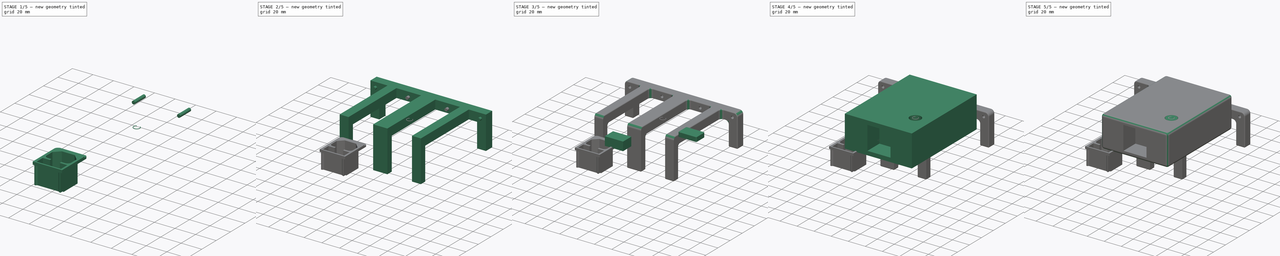
[diagram: build sequence overview — one tinted view per stage of 5, left to right]
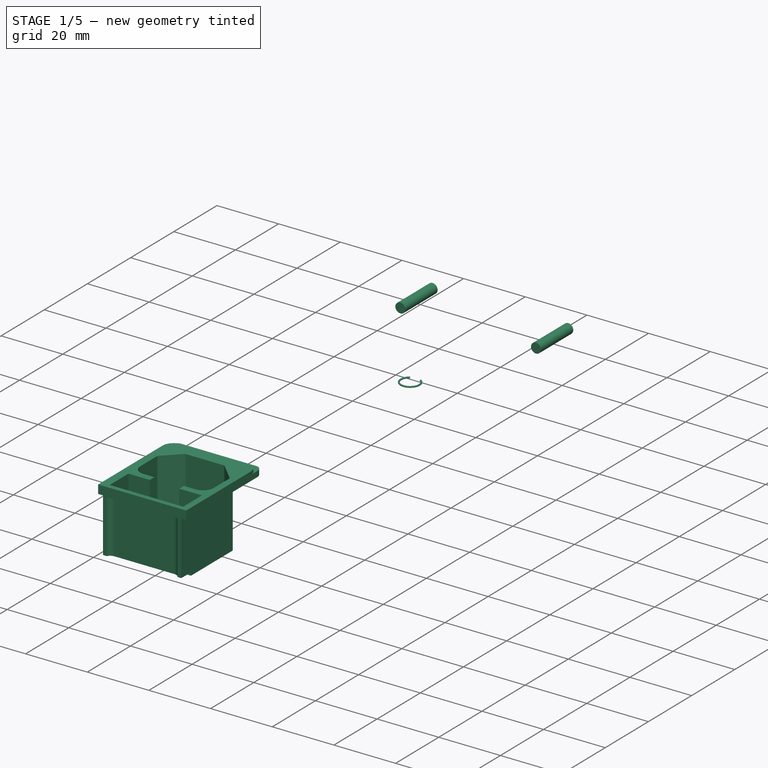
[diagram: stage 1 of 5 — iso view after this stage's code; geometry added in this stage tinted green]
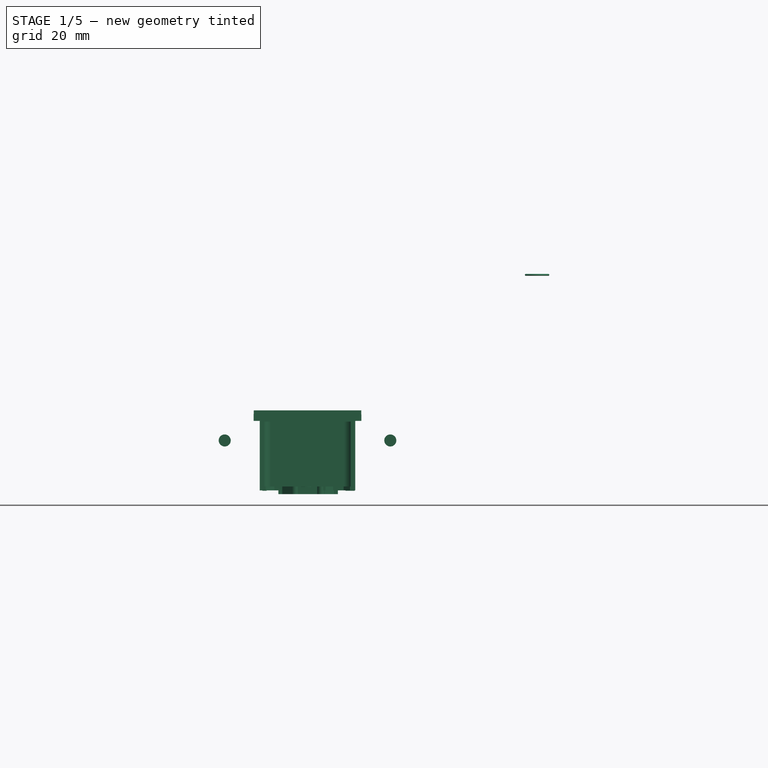
[diagram: stage 1 of 5 — front view after this stage's code; geometry added in this stage tinted green]
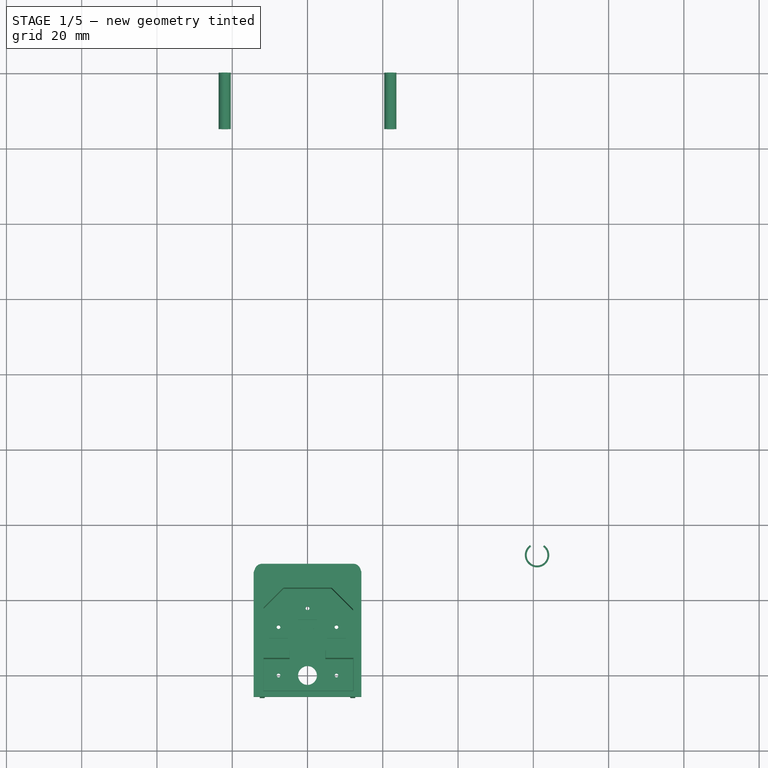
[diagram: stage 1 of 5 — top view after this stage's code; geometry added in this stage tinted green]
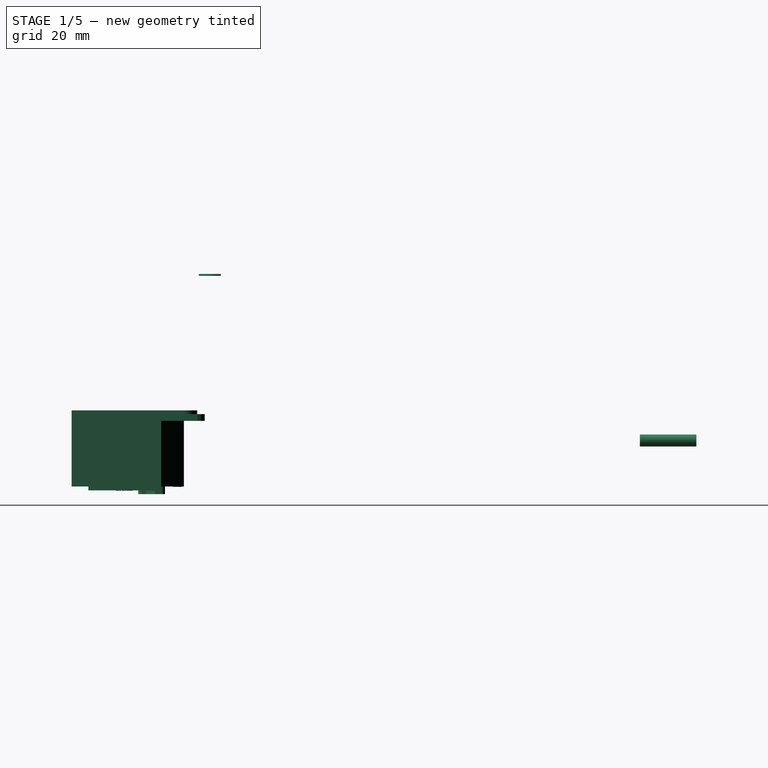
[diagram: stage 1 of 5 — right view after this stage's code; geometry added in this stage tinted green]
FCSTD DOCUMENT  (FreeCAD 0.21R33771 (Git))
Label: ezOutlet_holders
License: All rights reserved
LicenseURL: https://en.wikipedia.org/wiki/All_rights_reserved
objects: Part::Feature×38, Part::Box×16, Part::Cut×11, App::Part×9, Part::Cylinder×7, Part::Fillet×6, Part::MultiFuse×4, Sketcher::SketchObject×2, Part::Extrusion×2, Part::Torus×1
note: 87 computed .brp shape members not serialized (recipe doc carries the construction recipe); baked Part::Feature solids carry a one-line shape summary decoded from their .brp

FEATURE [Part::Box] Box003  label="Cube003"
  AttacherType = Attacher::AttachEngine3D
  Height = 57
  Length = 14.7
  Placement = pos=(-29,-7,-28) rot=(0,0,1;0rad)
  Width = 38
FEATURE [Part::Box] Box004  label="Cube004"
  AttacherType = Attacher::AttachEngine3D
  Height = 57
  Length = 14.7
  Placement = pos=(14.3,-7,-31) rot=(0,0,1;0rad)
  Width = 38
FEATURE [Part::Box] Box015  label="Cube002"
  AttacherType = Attacher::AttachEngine3D
  Height = 57
  Length = 62
  Placement = pos=(-29,-44,-31) rot=(0,0,1;0rad)
  Width = 38
FEATURE [Part::Cylinder] Cylinder021  label="m3_lm"
  Angle = 360
  AttacherType = Attacher::AttachEngine3D
  FirstAngle = 0
  Height = 15
  Placement = pos=(-22,160,-7) rot=(1,0,0;1.5708rad)
  Radius = 1.6
  SecondAngle = 0
FEATURE [Part::Cylinder] Cylinder022  label="m3_rm"
  Angle = 360
  AttacherType = Attacher::AttachEngine3D
  FirstAngle = 0
  Height = 15
  Placement = pos=(22,160,-7) rot=(1,0,0;1.5708rad)
  Radius = 1.6
  SecondAngle = 0
FEATURE [Part::Feature] Part__Feature  label="Body"
  shape: bbox 30 x 26.75 x 29.35 mm, 109 faces (baked)
FEATURE [Part::Feature] Part__Feature001  label="Body001"
  Placement = pos=(9e-16,-2.285,-17.7) rot=(0,0,1;0rad)
  shape: bbox 9 x 0.5 x 14.6 mm, 20 faces (baked)
FEATURE [Part::Feature] Part__Feature002  label="Body002"
  Placement = pos=(4.25,5.59,0) rot=(0,0,1;1.5708rad)
  shape: bbox 0.5 x 9 x 14.6 mm, 20 faces (baked)
FEATURE [Part::Feature] Part__Feature003  label="Body003"
  Placement = pos=(-4.25,5.59,0) rot=(0,0,1;1.5708rad)
  shape: bbox 0.5 x 9 x 14.6 mm, 20 faces (baked)
FEATURE [Part::Feature] Part__Feature004  label="Solid1"
  shape: bbox 48.94 x 58.74 x 22.24 mm, 535 faces (baked)
FEATURE [Part::Cut] Cut003
  Base = -> Part__Feature004
  Tool = -> Box015
FEATURE [Part::Cut] Cut004
  Base = -> Cut003
  Tool = -> Box003
FEATURE [Part::Cut] Cut005
  Base = -> Cut004
  Tool = -> Box004
FEATURE [App::Part] Part006  label="ezOutlet_holder"
  Group = -> [Box026,Fillet012,Fusion011,Cylinder020,Cylinder019,Cylinder021,Cylinder022,Extrude002,Box028,Fusion012,Box024,Box027,Box025,Sketch002,Cut017]
  Origin = -> Origin030
  Placement = pos=(0,0,-157) rot=(0,0,1;0rad)
FEATURE [App::Part] Solid3  label="Solid006"
  Group = -> [Part__Feature005,Part__Feature006,Part__Feature007]
  Origin = -> Origin002
FEATURE [App::Part] Solid4  label="Solid010"
  Group = -> [Part__Feature008,Part__Feature009,Part__Feature010,Part__Feature011]
  Origin = -> Origin023
FEATURE [Part::Torus] Torus
  Angle1 = -180
  Angle2 = 180
  Angle3 = 290
  AttacherType = Attacher::AttachEngine3D
  Placement = pos=(61,31,37) rot=(0,0,1;2.18166rad)
  Radius1 = 3
  Radius2 = 0.25
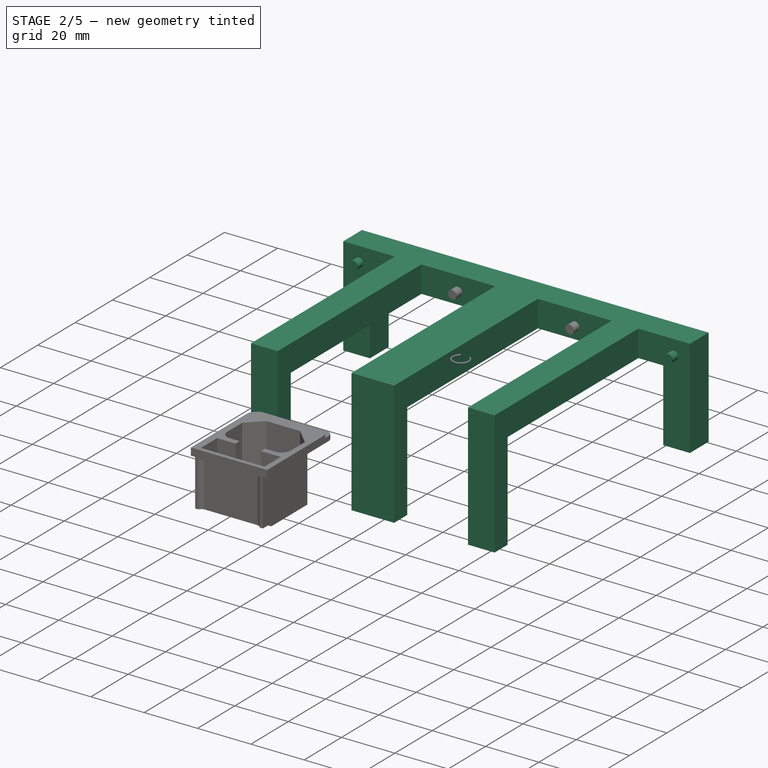
[diagram: stage 2 of 5 — iso view after this stage's code; geometry added in this stage tinted green]
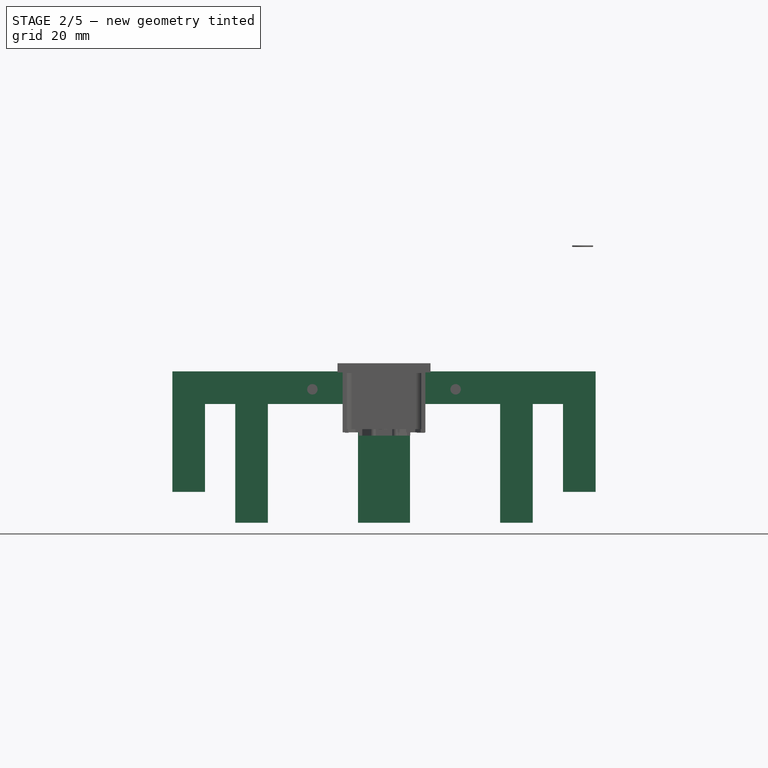
[diagram: stage 2 of 5 — front view after this stage's code; geometry added in this stage tinted green]
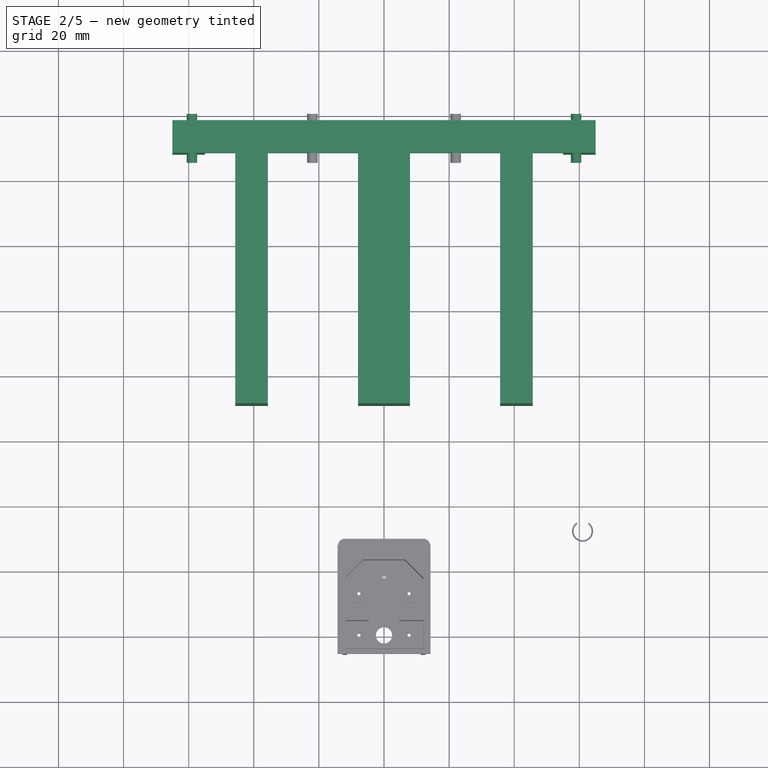
[diagram: stage 2 of 5 — top view after this stage's code; geometry added in this stage tinted green]
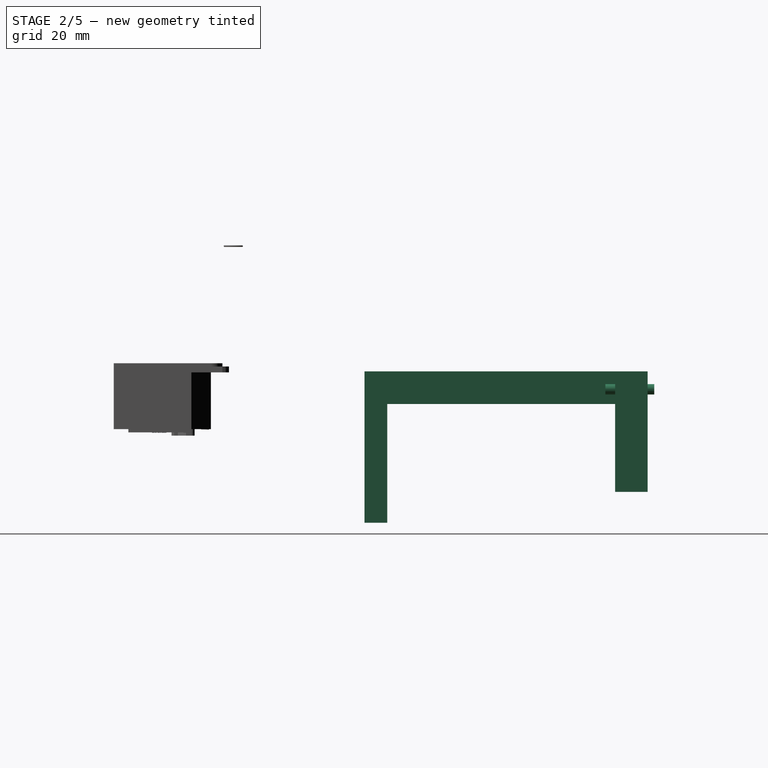
[diagram: stage 2 of 5 — right view after this stage's code; geometry added in this stage tinted green]
FEATURE [Part::Box] Box024  label="Bottom_left"
  AttacherType = Attacher::AttachEngine3D
  Height = 27
  Length = 10
  Placement = pos=(-65,148,-38.5) rot=(0,0,1;0rad)
  Width = 10
FEATURE [Part::Box] Box025  label="Bottom_right"
  AttacherType = Attacher::AttachEngine3D
  Height = 27
  Length = 10
  Placement = pos=(55,148,-38.5) rot=(0,0,1;0rad)
  Width = 10
FEATURE [Part::Box] Box026  label="Top_left"
  AttacherType = Attacher::AttachEngine3D
  Height = 36.5
  Length = 10
  Placement = pos=(-45.68,71,-48) rot=(0,0,1;0rad)
  Width = 7
FEATURE [Part::Box] Box027  label="Top_right"
  AttacherType = Attacher::AttachEngine3D
  Height = 36.5
  Length = 10
  Placement = pos=(35.68,71,-48) rot=(0,0,1;0rad)
  Width = 7
FEATURE [Part::Box] Box028  label="Top_middle"
  AttacherType = Attacher::AttachEngine3D
  Height = 36.5
  Length = 16
  Placement = pos=(-8,71,-48) rot=(0,0,1;0rad)
  Width = 7
FEATURE [Part::Cylinder] Cylinder019  label="m3_l"
  Angle = 360
  AttacherType = Attacher::AttachEngine3D
  FirstAngle = 0
  Height = 15
  Placement = pos=(-59,160,-7) rot=(1,0,0;1.5708rad)
  Radius = 1.6
  SecondAngle = 0
FEATURE [Part::Cylinder] Cylinder020  label="m3_r"
  Angle = 360
  AttacherType = Attacher::AttachEngine3D
  FirstAngle = 0
  Height = 15
  Placement = pos=(59,160,-7) rot=(1,0,0;1.5708rad)
  Radius = 1.6
  SecondAngle = 0
FEATURE [Part::MultiFuse] Fusion012  label="m3"
  Shapes = -> [Cylinder019,Cylinder020,Cylinder021,Cylinder022]
FEATURE [Sketcher::SketchObject] Sketch002
  FullyConstrained = true
  sketch-geometry (16):
    g0: LineSegment StartX=-65 StartY=157.37 StartZ=0 EndX=65 EndY=157.37 EndZ=0
    g1: LineSegment StartX=-65 StartY=157.37 StartZ=0 EndX=-65 EndY=147.37 EndZ=0
    g2: LineSegment StartX=-65 StartY=147.37 StartZ=0 EndX=-45.68 EndY=147.37 EndZ=0
    g3: LineSegment StartX=-45.68 StartY=147.37 StartZ=0 EndX=-45.68 EndY=70.37 EndZ=0
    g4: LineSegment StartX=-45.68 StartY=70.37 StartZ=0 EndX=-35.68 EndY=70.37 EndZ=0
    g5: LineSegment StartX=-35.68 StartY=70.37 StartZ=0 EndX=-35.68 EndY=147.37 EndZ=0
    g6: LineSegment StartX=-35.68 StartY=147.37 StartZ=0 EndX=-8 EndY=147.37 EndZ=0
    g7: LineSegment StartX=-8 StartY=147.37 StartZ=0 EndX=-8 EndY=70.37 EndZ=0
    g8: LineSegment StartX=-8 StartY=70.37 StartZ=0 EndX=8 EndY=70.37 EndZ=0
    g9: LineSegment StartX=8 StartY=70.37 StartZ=0 EndX=8 EndY=147.37 EndZ=0
    g10: LineSegment StartX=8 StartY=147.37 StartZ=0 EndX=35.68 EndY=147.37 EndZ=0
    g11: LineSegment StartX=35.68 StartY=147.37 StartZ=0 EndX=35.68 EndY=70.37 EndZ=0
    g12: LineSegment StartX=35.68 StartY=70.37 StartZ=0 EndX=45.68 EndY=70.37 EndZ=0
    g13: LineSegment StartX=45.68 StartY=70.37 StartZ=0 EndX=45.68 EndY=147.37 EndZ=0
    g14: LineSegment StartX=45.68 StartY=147.37 StartZ=0 EndX=65 EndY=147.37 EndZ=0
    g15: LineSegment StartX=65 StartY=147.37 StartZ=0 EndX=65 EndY=157.37 EndZ=0
  constraints (44):
    c: Symmetric(g0,g0,g-2)
    c: Distance(g0) = 130
    c: Coincident(g1,g0)
    c: Vertical(g1)
    c: Coincident(g2,g1)
    c: Horizontal(g2)
    c: Vertical(g3)
    c: Coincident(g4,g3)
    c: Horizontal(g4)
    c: Coincident(g5,g4)
    c: Vertical(g5)
    c: Coincident(g6,g5)
    c: Horizontal(g6)
    c: Coincident(g7,g6)
    c: Vertical(g7)
    c: Coincident(g8,g7)
    c: Horizontal(g8)
    c: Coincident(g9,g8)
    c: Vertical(g9)
    c: Coincident(g10,g9)
    c: Coincident(g11,g10)
    c: Vertical(g11)
    c: Coincident(g12,g11)
    c: Horizontal(g12)
    c: Coincident(g13,g12)
    c: Vertical(g13)
    c: Coincident(g14,g13)
    c: Horizontal(g14)
    c: Coincident(g15,g14)
    c: Coincident(g15,g0)
    c: Vertical(g15)
    c: Symmetric(g6,g9,g-2)
    c: Symmetric(g5,g10,g-2)
    c: Symmetric(g2,g13,g-2)
    c: Coincident(g2,g3)
    c: Distance(g2,g0) = 10
    c: Distance(g5,g0) = 10
    c: Distance(g3) = 77
    c: Distance(g4) = 10
    c: Distance(g8) = 16
    c: Distance(g9) = 77
    c: Distance(g13) = 77
    c: Distance(g1,g-1) = 147.37
    c: Distance(g3,g-2) = 45.68
FEATURE [Part::Extrusion] Extrude002  label="Side__hold"
  Base = -> Sketch002
  Dir = (0,0,1)
  DirMode = 2
  FaceMakerClass = Part::FaceMakerBullseye
  LengthFwd = 10
  LengthRev = 0
  Placement = pos=(0,0.63,-1.5) rot=(0,0,1;0rad)
  Reversed = true
  Solid = true
  Symmetric = false
FEATURE [Part::MultiFuse] Fusion011  label="Holder"
  Shapes = -> [Extrude002,Box024,Box025,Box026,Box027,Box028]
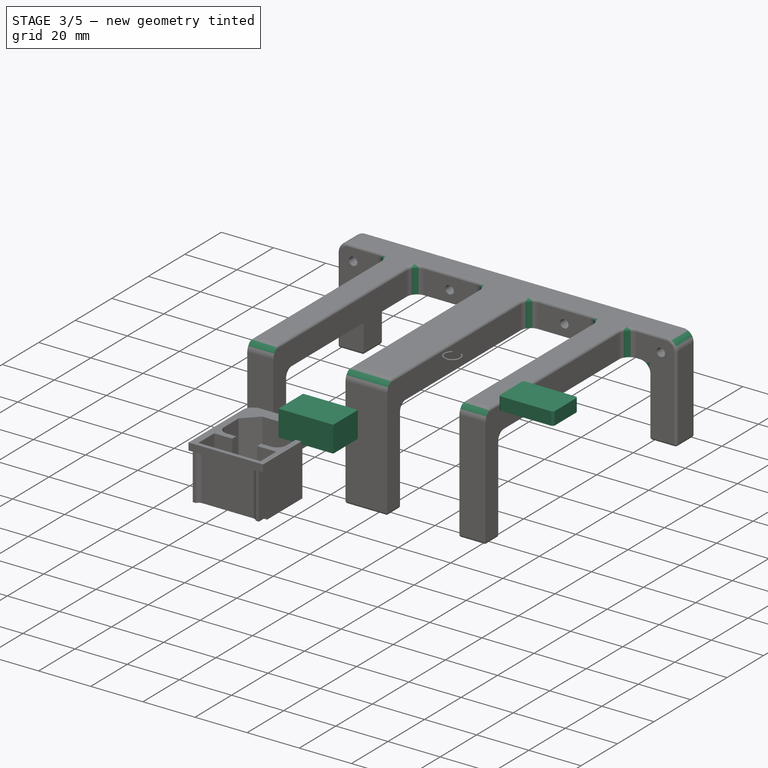
[diagram: stage 3 of 5 — iso view after this stage's code; geometry added in this stage tinted green]
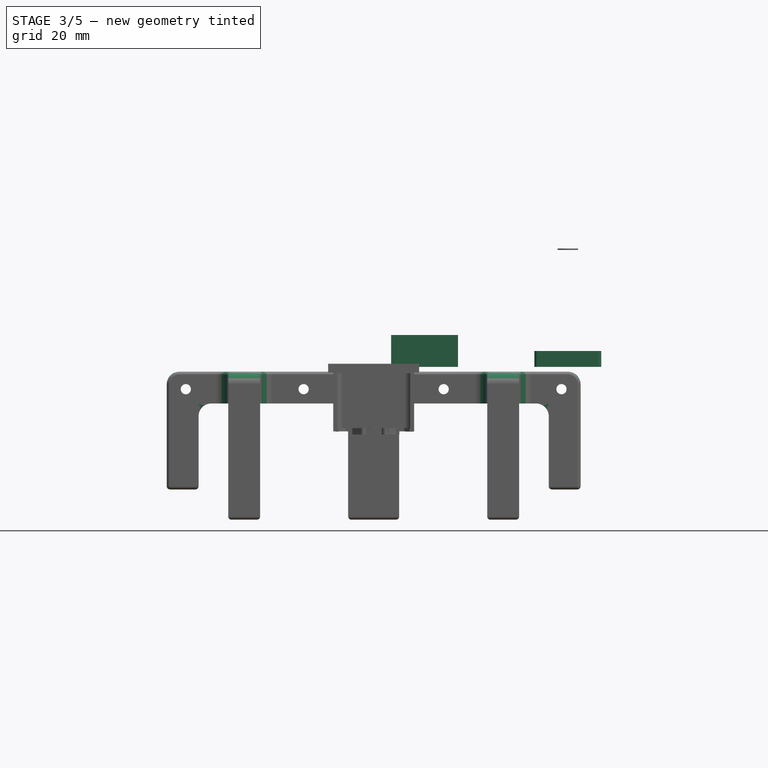
[diagram: stage 3 of 5 — front view after this stage's code; geometry added in this stage tinted green]
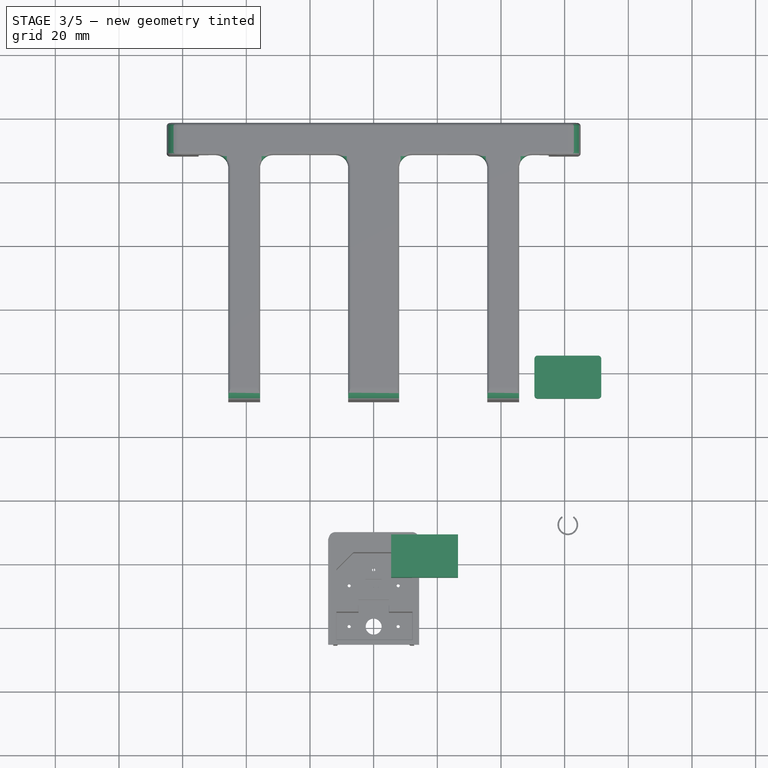
[diagram: stage 3 of 5 — top view after this stage's code; geometry added in this stage tinted green]
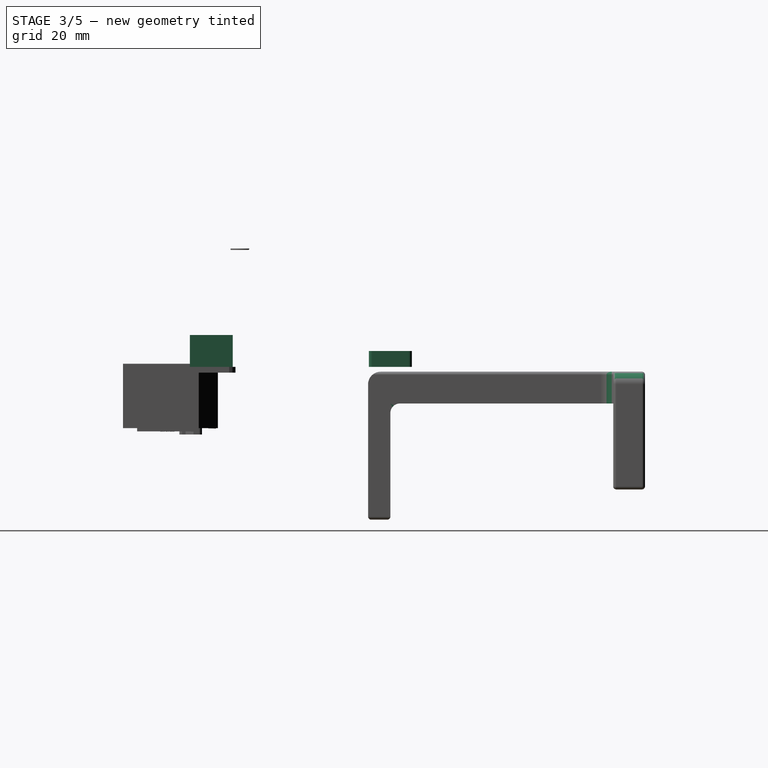
[diagram: stage 3 of 5 — right view after this stage's code; geometry added in this stage tinted green]
FEATURE [Part::Box] Box007  label="Cube010"
  AttacherType = Attacher::AttachEngine3D
  Height = 10
  Length = 21
  Placement = pos=(5.5,15,0) rot=(0,0,1;0rad)
  Width = 13.5
FEATURE [Part::Box] Box016  label="Cube011"
  AttacherType = Attacher::AttachEngine3D
  Height = 10
  Length = 20.8
  Placement = pos=(5.6,15.1,0) rot=(0,0,1;0rad)
  Width = 13.3
FEATURE [Part::Box] Box017  label="Cube012"
  AttacherType = Attacher::AttachEngine3D
  Height = 5
  Length = 21
  Placement = pos=(5.5,13.5,0) rot=(0,0,1;0rad)
  Width = 13.5
FEATURE [Part::Box] Box018  label="Cube013"
  AttacherType = Attacher::AttachEngine3D
  Height = 5
  Length = 20.8
  Placement = pos=(5.5,13.5,0) rot=(0,0,1;0rad)
  Width = 13.3
FEATURE [Part::Fillet] Fillet005  label="Key_hole_mount"
  Base = -> Box016
  Edges = 4 edges r=1: [Edge1,Edge3,Edge5,Edge7]
FEATURE [Part::Fillet] Fillet006  label="Key_hole001"
  Base = -> Box017
  Edges = 4 edges r=1: [Edge1,Edge3,Edge5,Edge7]
  Placement = pos=(45,57.75,0) rot=(0,0,1;0rad)
FEATURE [Part::Fillet] Fillet007  label="Key_hole002"
  Base = -> Box018
  Edges = 4 edges r=1: [Edge1,Edge3,Edge5,Edge7]
  Placement = pos=(45.1,57.85,0) rot=(0,0,1;0rad)
FEATURE [Part::Fillet] Fillet012  label="Holder_fillet"
  Base = -> Fusion011
  Edges = 55 edges: [Edge1 r=1,Edge2 r=1,Edge3 r=1,Edge7 r=1,Edge8 r=4,Edge10 r=1,Edge11 r=4,Edge13 r=1,Edge14 r=1,Edge15 r=4,Edge16 r=1,Edge17 r=1,Edge18 r=1,Edge19 r=4,Edge20 r=1,Edge21 r=1,Edge22 r=1,Edge23 r=4,Edge24 r=1,Edge25 r=1,Edge26 r=1,Edge28 r=1,Edge29 r=4,Edge32 r=3,Edge36 r=3,Edge40 r=3,Edge43 r=4,Edge44 r=1,Edge45 r=1,Edge47 r=4,Edge49 r=1,Edge50 r=1,Edge51 r=4,Edge53 r=1,Edge54 r=1,Edge59 r=4,Edge61 r=4,Edge66 r=4,Edge68 r=4,Edge74 r=1,Edge75 r=1,Edge78 r=1,Edge79 r=1,Edge82 r=1,Edge85 r=1,Edge88 r=1,Edge90 r=1,Edge91 r=1,Edge93 r=1,Edge95 r=1,Edge96 r=1,Edge98 r=1,Edge100 r=1,Edge101 r=1,+1 more]
FEATURE [Part::Cut] Cut017  label="eZ_Holder"
  Base = -> Fillet012
  Tool = -> Fusion012
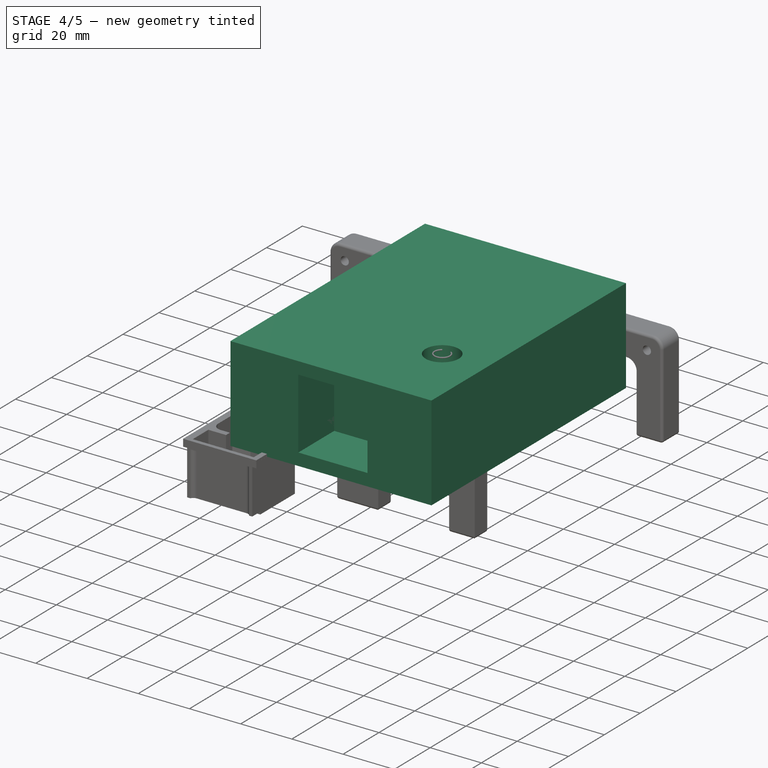
[diagram: stage 4 of 5 — iso view after this stage's code; geometry added in this stage tinted green]
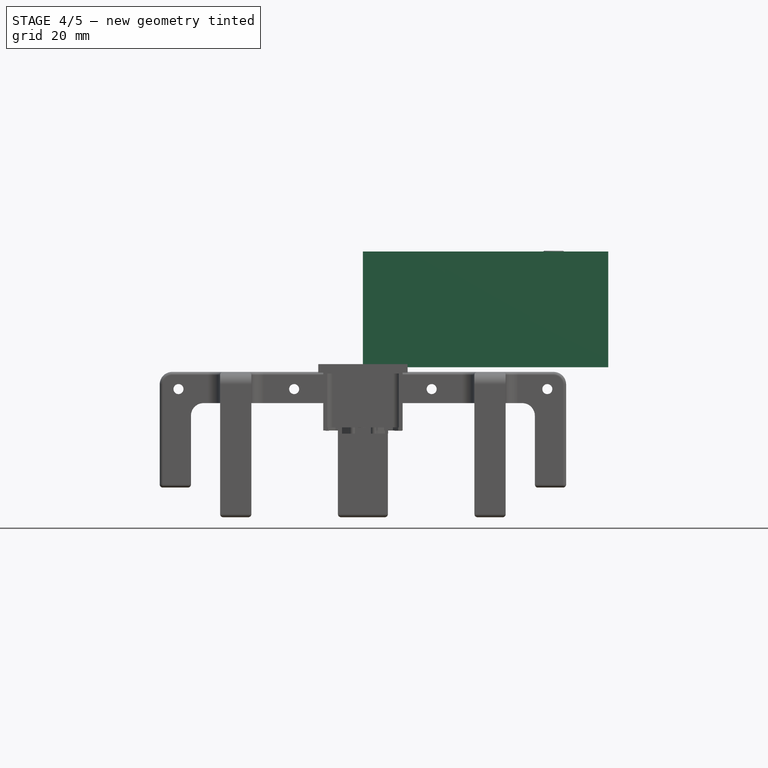
[diagram: stage 4 of 5 — front view after this stage's code; geometry added in this stage tinted green]
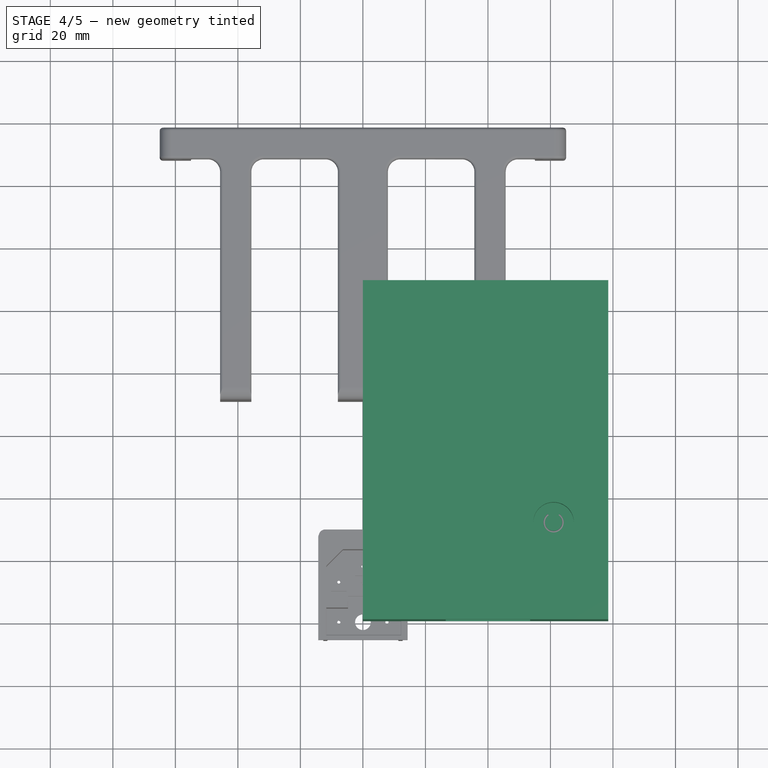
[diagram: stage 4 of 5 — top view after this stage's code; geometry added in this stage tinted green]
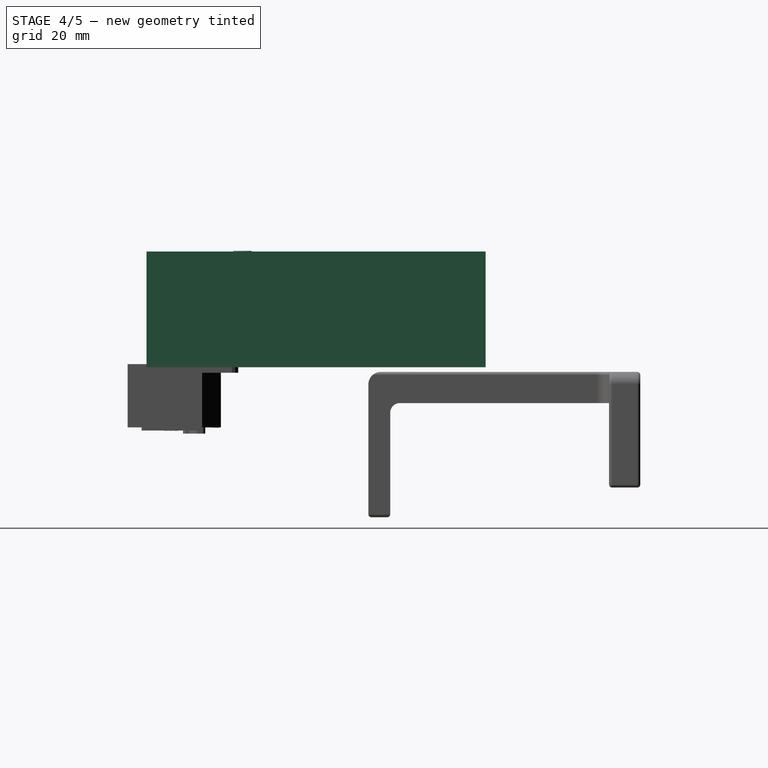
[diagram: stage 4 of 5 — right view after this stage's code; geometry added in this stage tinted green]
FEATURE [Part::Box] Box005  label="Cube009"
  AttacherType = Attacher::AttachEngine3D
  Height = 25
  Length = 31
  Placement = pos=(37.5,83.5,6) rot=(0,0,1;0rad)
  Width = 27
FEATURE [Part::Box] Box006  label="lan_cube"
  AttacherType = Attacher::AttachEngine3D
  Height = 13.25
  Length = 16.5
  Placement = pos=(11.25,101,14.8) rot=(0,0,1;0rad)
  Width = 10
FEATURE [Part::Box] Box013  label="Cube"
  AttacherType = Attacher::AttachEngine3D
  Height = 37
  Length = 78.5
  Width = 108.5
FEATURE [Part::Box] Box014  label="Cube001"
  AttacherType = Attacher::AttachEngine3D
  Height = 27.5
  Length = 27
  Placement = pos=(26.5,0,4.75) rot=(0,0,1;0rad)
  Width = 20
FEATURE [Part::Cut] Cut001  label="Power_out_cut"
  Base = -> Box013
  Tool = -> Box014
FEATURE [Part::Cylinder] Cylinder004
  Angle = 360
  AttacherType = Attacher::AttachEngine3D
  FirstAngle = 0
  Height = 10
  Placement = pos=(61,31,27) rot=(0,0,1;0rad)
  Radius = 6.5
  SecondAngle = 0
FEATURE [Part::Cut] Cut002  label="Power_button_cut"
  Base = -> Cut001
  Tool = -> Cylinder004
FEATURE [Part::Cut] Cut006  label="Power_in_cut"
  Base = -> Cut002
  Tool = -> Box005
FEATURE [Part::Cut] Cut007  label="LAN_cut"
  Base = -> Cut006
  Tool = -> Box006
FEATURE [Part::Fillet] Fillet004  label="Key_hole"
  Base = -> Box007
  Edges = 4 edges r=1: [Edge1,Edge3,Edge5,Edge7]
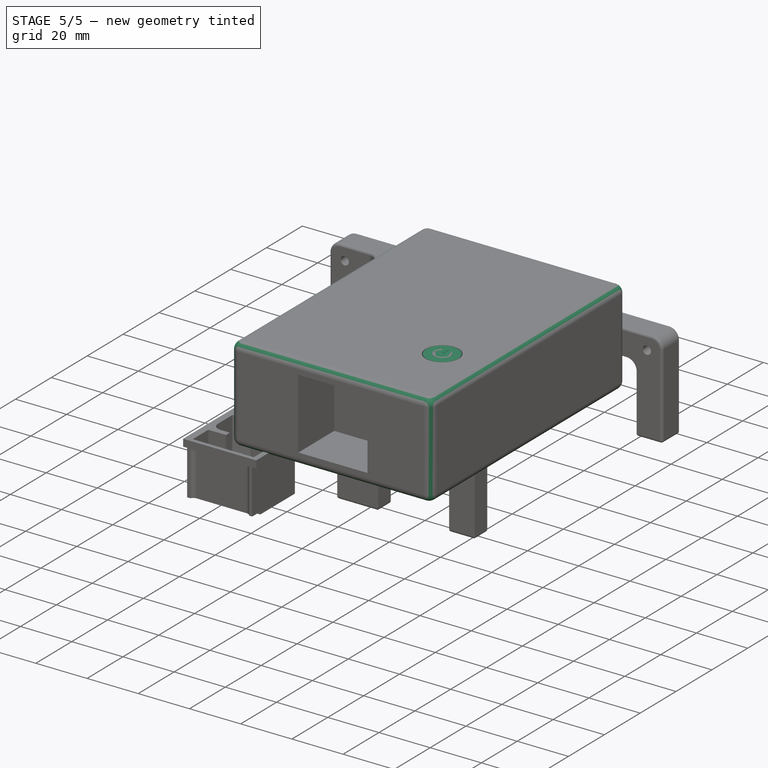
[diagram: stage 5 of 5 — iso view after this stage's code; geometry added in this stage tinted green]
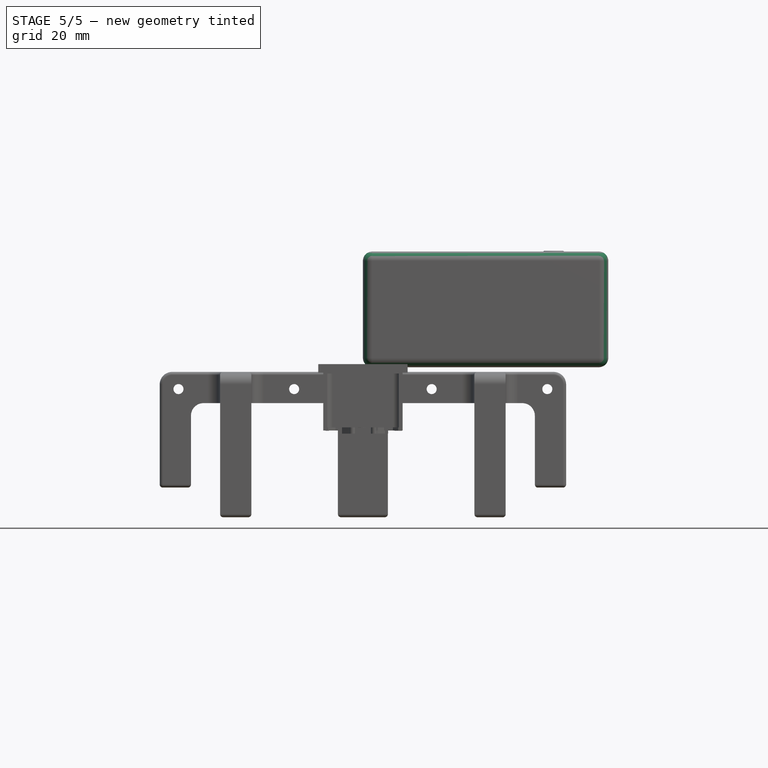
[diagram: stage 5 of 5 — front view after this stage's code; geometry added in this stage tinted green]
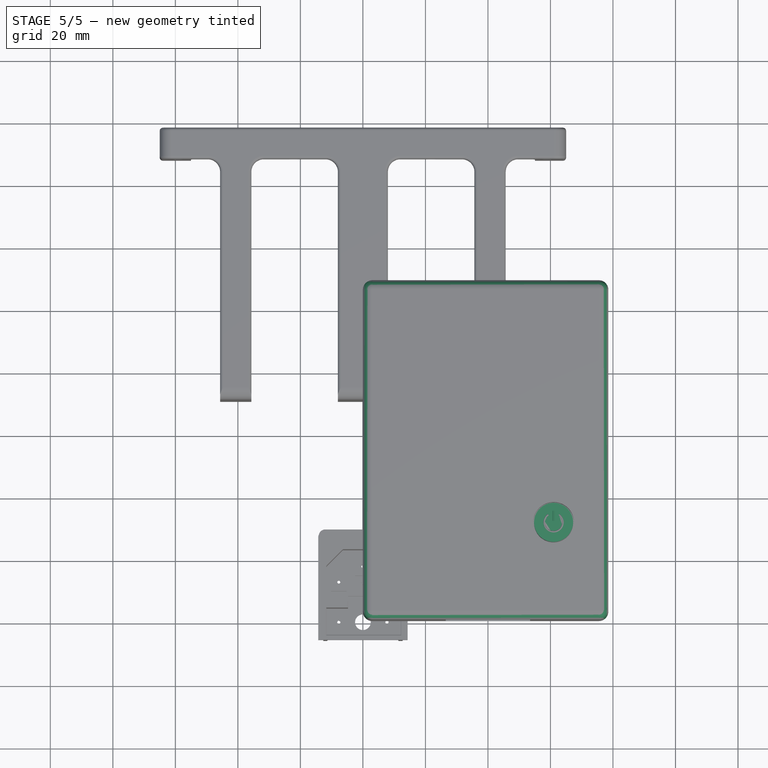
[diagram: stage 5 of 5 — top view after this stage's code; geometry added in this stage tinted green]
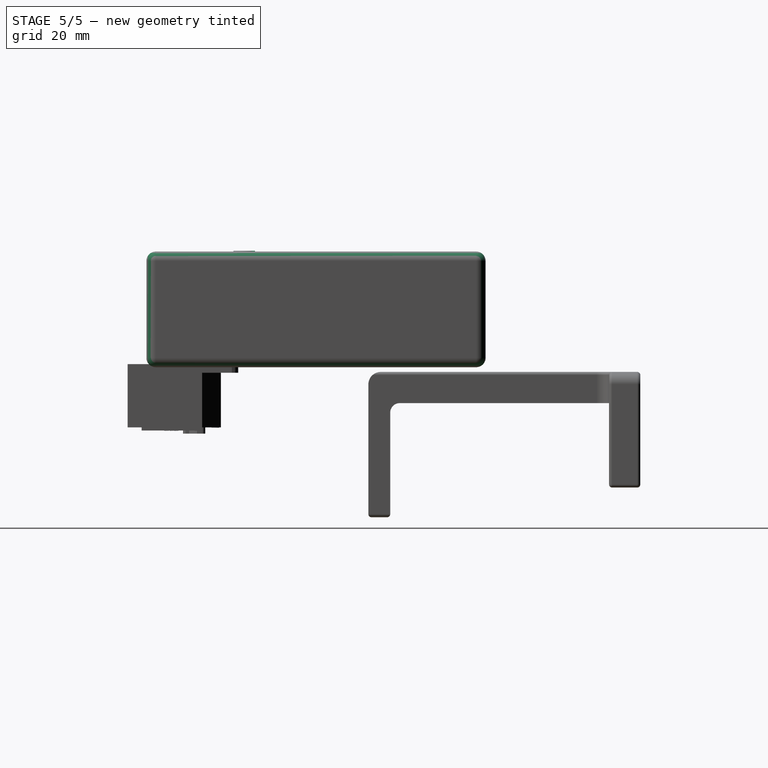
[diagram: stage 5 of 5 — right view after this stage's code; geometry added in this stage tinted green]
FEATURE [Part::Cylinder] Cylinder005  label="power_butt"
  Angle = 360
  AttacherType = Attacher::AttachEngine3D
  FirstAngle = 0
  Height = 10
  Placement = pos=(61,31,27) rot=(0,0,1;0rad)
  Radius = 6.25
  SecondAngle = 0
FEATURE [Part::Cylinder] Cylinder006
  Angle = 360
  AttacherType = Attacher::AttachEngine3D
  FirstAngle = 0
  Height = 3.25
  Placement = pos=(61,31.5,37) rot=(-1,0,0;1.5708rad)
  Radius = 0.25
  SecondAngle = 0
FEATURE [Part::Fillet] Fillet003  label="main_box"
  Base = -> Cut007
  Edges = 12 edges r=3: [Edge1,Edge2,Edge3,Edge4,Edge5,Edge6,Edge7,Edge12,Edge13,Edge15,Edge16,Edge25]
FEATURE [Part::Cut] Cut008  label="first_hole"
  Base = -> Fillet003
  Tool = -> Fillet004
FEATURE [Part::Cut] Cut009  label="Hole2"
  Base = -> Cut008
  Tool = -> Fillet006
FEATURE [Part::MultiFuse] Fusion007
  Shapes = -> [Fillet005,Cut009,Fillet007]
FEATURE [Part::Feature] Part__Feature005  label="Solid3"
  shape: bbox 2 x 4 x 20.28 mm, 13 faces (baked)
FEATURE [Part::Feature] Part__Feature006  label="Solid004"
  shape: bbox 2 x 4 x 17.28 mm, 13 faces (baked)
FEATURE [Part::Feature] Part__Feature007  label="Solid005"
  shape: bbox 2 x 4 x 17.28 mm, 13 faces (baked)
FEATURE [Part::Feature] Part__Feature008  label="Solid4"
  shape: bbox 5.5 x 5.5 x 8.5 mm, 23 faces (baked)
FEATURE [Part::Feature] Part__Feature009  label="Solid007"
  shape: bbox 5.5 x 5.5 x 8.5 mm, 23 faces (baked)
FEATURE [Part::Feature] Part__Feature010  label="Solid008"
  shape: bbox 5.5 x 5.5 x 8.5 mm, 23 faces (baked)
FEATURE [Part::Feature] Part__Feature011  label="Solid009"
  shape: bbox 5.769 x 18 x 0.5 mm, 12 faces (baked)
FEATURE [Part::Feature] Part__Feature012  label="FUSE"
  Placement = pos=(2.76516,20.0677,-12.471) rot=(1,0,0;1.5708rad)
  shape: bbox 5 x 7 x 11.27 mm, 51 faces (baked)
FEATURE [Part::Feature] Part__Feature013  label="FUSE001"
  Placement = pos=(2.76516,20.0677,-12.471) rot=(1,0,0;1.5708rad)
  shape: bbox 2 x 2 x 2.691 mm, 4 faces (baked)
FEATURE [Part::Feature] Part__Feature014  label="FUSE002"
  Placement = pos=(2.76516,20.0677,-12.471) rot=(1,0,0;1.5708rad)
  shape: bbox 5 x 7 x 13.96 mm, 54 faces (baked)
FEATURE [App::Part] FUSE  label="FUSE003"
  Group = -> [Part__Feature012,Part__Feature013,Part__Feature014]
  Origin = -> Origin024
FEATURE [Part::Feature] Part__Feature015  label="COMPOUND011"
  Placement = pos=(0,-0.0056,0.0002) rot=(0,0,1;0rad)
  shape: bbox 0.4 x 11.61 x 3.651 mm, 6 faces (baked)
FEATURE [Part::Feature] Part__Feature247  label="COMPOUND012"
  Placement = pos=(0,-0.0056,0.0002) rot=(0,0,1;0rad)
  shape: bbox 0.4 x 11.61 x 3.651 mm, 6 faces (baked)
FEATURE [Part::Feature] Part__Feature248  label="COMPOUND013"
  Placement = pos=(0,-0.0056,0.0002) rot=(0,0,1;0rad)
  shape: bbox 0.4 x 11.61 x 3.651 mm, 6 faces (baked)
FEATURE [Part::Feature] Part__Feature249  label="COMPOUND014"
  Placement = pos=(0,-0.0056,0.0002) rot=(0,0,1;0rad)
  shape: bbox 0.4 x 11.61 x 3.651 mm, 6 faces (baked)
FEATURE [Part::Feature] Part__Feature250  label="COMPOUND015"
  Placement = pos=(0,-0.0056,0.0002) rot=(0,0,1;0rad)
  shape: bbox 0.4 x 11.61 x 3.651 mm, 6 faces (baked)
FEATURE [Part::Feature] Part__Feature251  label="COMPOUND016"
  Placement = pos=(0,-0.0056,0.0002) rot=(0,0,1;0rad)
  shape: bbox 0.4 x 11.61 x 3.651 mm, 6 faces (baked)
FEATURE [Part::Feature] Part__Feature252  label="COMPOUND017"
  Placement = pos=(0,-0.0056,0.0002) rot=(0,0,1;0rad)
  shape: bbox 0.4 x 11.61 x 3.651 mm, 6 faces (baked)
FEATURE [Part::Feature] Part__Feature253  label="Solid2"
  shape: bbox 23.81 x 12.73 x 19.05 mm, 337 faces (baked)
FEATURE [Part::Feature] Part__Feature254  label="FUSE (1)"
  Placement = pos=(2.90467,-3.14305,-31.7578) rot=(0,0,1;0rad)
  shape: bbox 5 x 5.737 x 5.737 mm, 4 faces (baked)
FEATURE [Part::Feature] Part__Feature255  label="FUSE (1)001"
  Placement = pos=(2.90467,-3.14305,-31.7578) rot=(0,0,1;0rad)
  shape: bbox 5 x 5.737 x 5.737 mm, 4 faces (baked)
FEATURE [Part::Feature] Part__Feature256  label="FUSE (1)002"
  Placement = pos=(2.90467,-3.14305,-31.7578) rot=(0,0,1;0rad)
  shape: bbox 10 x 4.6 x 4.6 mm, 3 faces (baked)
FEATURE [Part::Feature] Part__Feature257  label="FUSE (1)003"
  Placement = pos=(2.90467,-3.14305,-31.7578) rot=(0,0,1;0rad)
  shape: bbox 10 x 0.5 x 0.5 mm, 3 faces (baked)
FEATURE [App::Part] FUSE__1_  label="FUSE (1)004"
  Group = -> [Part__Feature254,Part__Feature255,Part__Feature256,Part__Feature257]
  Origin = -> Origin025
FEATURE [Part::Feature] Part__Feature258  label="COMPOUND003"
  Placement = pos=(0,-0.0056,0.0002) rot=(0,0,1;0rad)
  shape: bbox 0.4 x 3.65 x 1.05 mm, 24 faces (baked)
FEATURE [Part::Feature] Part__Feature259  label="COMPOUND"
  Placement = pos=(0,-0.0056,0.0002) rot=(0,0,1;0rad)
  shape: bbox 18.9 x 15.9 x 13.25 mm, 232 faces (baked)
FEATURE [Part::Feature] Part__Feature260  label="COMPOUND001"
  Placement = pos=(0,-0.0056,0.0002) rot=(0,0,1;0rad)
  shape: bbox 0.4 x 3.65 x 1.05 mm, 24 faces (baked)
FEATURE [Part::Feature] Part__Feature261  label="COMPOUND002"
  Placement = pos=(0,-0.0056,0.0002) rot=(0,0,1;0rad)
  shape: bbox 0.4 x 3.65 x 1.05 mm, 24 faces (baked)
FEATURE [Part::Feature] Part__Feature262  label="COMPOUND004"
  Placement = pos=(0,-0.0056,0.0002) rot=(0,0,1;0rad)
  shape: bbox 0.4 x 3.65 x 1.05 mm, 24 faces (baked)
FEATURE [Part::Feature] Part__Feature263  label="COMPOUND005"
  Placement = pos=(0,-0.0056,0.0002) rot=(0,0,1;0rad)
  shape: bbox 0.4 x 3.65 x 1.05 mm, 24 faces (baked)
FEATURE [Part::Feature] Part__Feature264  label="COMPOUND006"
  Placement = pos=(0,-0.0056,0.0002) rot=(0,0,1;0rad)
  shape: bbox 0.4 x 3.65 x 1.05 mm, 24 faces (baked)
FEATURE [Part::Feature] Part__Feature265  label="COMPOUND007"
  Placement = pos=(0,-0.0056,0.0002) rot=(0,0,1;0rad)
  shape: bbox 0.4 x 3.65 x 1.05 mm, 24 faces (baked)
FEATURE [Part::Feature] Part__Feature266  label="COMPOUND008"
  Placement = pos=(0,-0.0056,0.0002) rot=(0,0,1;0rad)
  shape: bbox 0.4 x 3.65 x 1.05 mm, 24 faces (baked)
FEATURE [Part::Feature] Part__Feature267  label="COMPOUND009"
  Placement = pos=(0,-0.0056,0.0002) rot=(0,0,1;0rad)
  shape: bbox 15.81 x 15.25 x 13.95 mm, 39 faces (baked)
FEATURE [Part::Feature] Part__Feature268  label="COMPOUND010"
  Placement = pos=(0,-0.0056,0.0002) rot=(0,0,1;0rad)
  shape: bbox 0.4 x 11.61 x 3.651 mm, 6 faces (baked)
FEATURE [App::Part] COMPOUND  label="LAN"
  Group = -> [Part__Feature259,Part__Feature260,Part__Feature261,Part__Feature258,Part__Feature262,Part__Feature263,Part__Feature264,Part__Feature265,Part__Feature266,Part__Feature267,Part__Feature268,Part__Feature015,Part__Feature247,Part__Feature248,Part__Feature249,Part__Feature250,Part__Feature251,Part__Feature252]
  Origin = -> Origin008
  Placement = pos=(19.5,104.5,14.75) rot=(0,0,1;3.14159rad)
FEATURE [Sketcher::SketchObject] Sketch001
  FullyConstrained = true
  Placement = pos=(0,0,0) rot=(1,0,0;3.14159rad)
  sketch-geometry (18):
    g0: ArcOfCircle CenterX=10.5 CenterY=-21.5 CenterZ=0 NormalX=0 NormalY=0 NormalZ=1 AngleXU=0 Radius=1.875 StartAngle=1.5708 EndAngle=4.71239
    g1: LineSegment StartX=10.5 StartY=-23.375 StartZ=0 EndX=13.04 EndY=-23.375 EndZ=0
    g2: LineSegment StartX=13.0446 StartY=-19.625 StartZ=0 EndX=10.5 EndY=-19.625 EndZ=0
    g3: ArcOfCircle CenterX=21.5 CenterY=-21.5 CenterZ=0 NormalX=0 NormalY=0 NormalZ=1 AngleXU=0 Radius=1.875 StartAngle=4.71239 EndAngle=7.85398
    g4: LineSegment StartX=18.9564 StartY=-23.375 StartZ=0 EndX=21.5 EndY=-23.375 EndZ=0
    g5: LineSegment StartX=21.5 StartY=-19.625 StartZ=0 EndX=18.9554 EndY=-19.625 EndZ=0
    g6: ArcOfCircle CenterX=55.25 CenterY=-77.5 CenterZ=0 NormalX=0 NormalY=0 NormalZ=1 AngleXU=0 Radius=1.875 StartAngle=1.5708 EndAngle=4.71239
    g7: LineSegment StartX=55.25 StartY=-79.375 StartZ=0 EndX=57.7946 EndY=-79.375 EndZ=0
    g8: LineSegment StartX=57.7946 StartY=-75.625 StartZ=0 EndX=55.25 EndY=-75.625 EndZ=0
    g9: ArcOfCircle CenterX=66.25 CenterY=-77.5 CenterZ=0 NormalX=0 NormalY=0 NormalZ=1 AngleXU=0 Radius=1.875 StartAngle=4.71239 EndAngle=7.85398
    g10: LineSegment StartX=63.71 StartY=-79.375 StartZ=0 EndX=66.25 EndY=-79.375 EndZ=0
    g11: LineSegment StartX=66.25 StartY=-75.625 StartZ=0 EndX=63.7054 EndY=-75.625 EndZ=0
    g12: ArcOfCircle CenterX=60.75 CenterY=-77.5 CenterZ=0 NormalX=0 NormalY=0 NormalZ=1 AngleXU=0 Radius=3.5 StartAngle=0.565353 EndAngle=2.57624
    g13: ArcOfCircle CenterX=60.7523 CenterY=-77.5036 CenterZ=0 NormalX=0 NormalY=0 NormalZ=1 AngleXU=0 Radius=3.5 StartAngle=3.70572 EndAngle=5.71906
    g14: ArcOfCircle CenterX=16 CenterY=-21.5 CenterZ=0 NormalX=0 NormalY=0 NormalZ=1 AngleXU=0 Radius=3.5 StartAngle=0.565353 EndAngle=2.57624
    g15: ArcOfCircle CenterX=15.9982 CenterY=-21.5044 CenterZ=0 NormalX=0 NormalY=0 NormalZ=1 AngleXU=0 Radius=3.5 StartAngle=3.70545 EndAngle=5.71932
    g16: Circle CenterX=16 CenterY=-21.5 CenterZ=0 NormalX=0 NormalY=0 NormalZ=1 AngleXU=0 Radius=0.05
    g17: Circle CenterX=60.75 CenterY=-77.5 CenterZ=0 NormalX=0 NormalY=0 NormalZ=1 AngleXU=0 Radius=0.05
  constraints (52):
    c: Tangent(g0,g1) = -1.5708
    c: Tangent(g2,g0) = -1.5708
    c: Horizontal(g1)
    c: DistanceY(g0,g0) = 3.75
    c: Distance(g0,g-1) = 21.5
    c: Horizontal(g2)
    c: Tangent(g4,g3) = -1.5708
    c: Tangent(g3,g5) = -1.5708
    c: Horizontal(g4)
    c: Distance(g3,g3) = 3.75
    c: Distance(g3,g-1) = 21.5
    c: Horizontal(g5)
    c: Tangent(g6,g7) = -1.5708
    c: Tangent(g8,g6) = -1.5708
    c: Horizontal(g7)
    c: Tangent(g10,g9) = -1.5708
    c: Tangent(g9,g11) = -1.5708
    c: Horizontal(g10)
    c: Distance(g6,g-1) = 77.5
    c: Distance(g9,g-1) = 77.5
    c: Horizontal(g11)
    c: Distance(g9,g9) = 3.75
    c: Distance(g6,g6) = 3.75
    c: Horizontal(g8)
    c: Coincident(g12,g8)
    c: Coincident(g12,g11)
    c: Diameter(g12) = 7
    c: Coincident(g13,g7)
    c: Coincident(g13,g10)
    c: Diameter(g13) = 7
    c: Distance(g12,g-1) = 77.5
    c: Distance(g12,g-2) = 60.75
    c: Distance(g7,g8) = 3.75
    c: Distance(g9,g-2) = 66.25
    c: Distance(g6,g-2) = 55.25
    c: Distance(g10,g-2) = 63.71
    c: Coincident(g14,g2)
    c: Coincident(g14,g5)
    c: Coincident(g15,g1)
    c: Coincident(g15,g4)
    c: Diameter(g14) = 7
    c: Diameter(g15) = 7
    c: Distance(g14,g-1) = 21.5
    c: Distance(g14,g-2) = 16
    c: Distance(g1,g-2) = 13.04
    c: Distance(g0,g-2) = 10.5
    c: Distance(g3,g-2) = 21.5
    c: Distance(g4,g3) = 3.16
    c: Coincident(g16,g14)
    c: Diameter(g16) = 0.1
    c: Coincident(g17,g12)
    c: Diameter(g17) = 0.1
FEATURE [Part::Extrusion] Extrude001
  Base = -> Sketch001
  Dir = (0,0,-1)
  DirMode = 2
  FaceMakerClass = Part::FaceMakerBullseye
  LengthFwd = 2
  LengthRev = 0
  Placement = pos=(0,0,2) rot=(0,0,1;0rad)
  Solid = true
  Symmetric = false
FEATURE [Part::Cut] Cut010
  Base = -> Fusion007
  Tool = -> Extrude001
FEATURE [Part::MultiFuse] Fusion006  label="Power_button"
  Shapes = -> [Torus,Cylinder005]
FEATURE [App::Part] Unnamed1  label="Power_out"
  Group = -> [Part__Feature,Part__Feature001,Part__Feature002,Part__Feature003]
  Origin = -> Origin022
  Placement = pos=(39.25,1.75,18.5) rot=(-0.57735,-0.57735,0.57735;4.18879rad)
FEATURE [App::Part] power_input_swuitch  label="power input swuitch"
  Group = -> [Solid3,Solid4,FUSE,Part__Feature253,FUSE__1_,Cut004,Cut003,Box015,Part__Feature004,Box004,Box003,Cut005]
  Origin = -> Origin026
  Placement = pos=(39.25,109,18.5) rot=(-0.57735,-0.57735,-0.57735;2.0944rad)
FEATURE [App::Part] Part004  label="eZOutlet5"
  Group = -> [Unnamed1,Cylinder006,Torus,Cylinder005,Fusion006,power_input_swuitch,COMPOUND,Cut006,Fillet003,Fillet005,Fillet006,Fillet007,Sketch001,Box006,Box007,Box018,Box016,Box017,Extrude001,Fillet004,Cut008,Cut009,Cut007,Box014,Box005,Box013,Cut001,Cut002,Fusion007,Cylinder004,Cut010]
  Origin = -> Origin
  Placement = pos=(54.5,79,-206) rot=(0,0,1;1.5708rad)
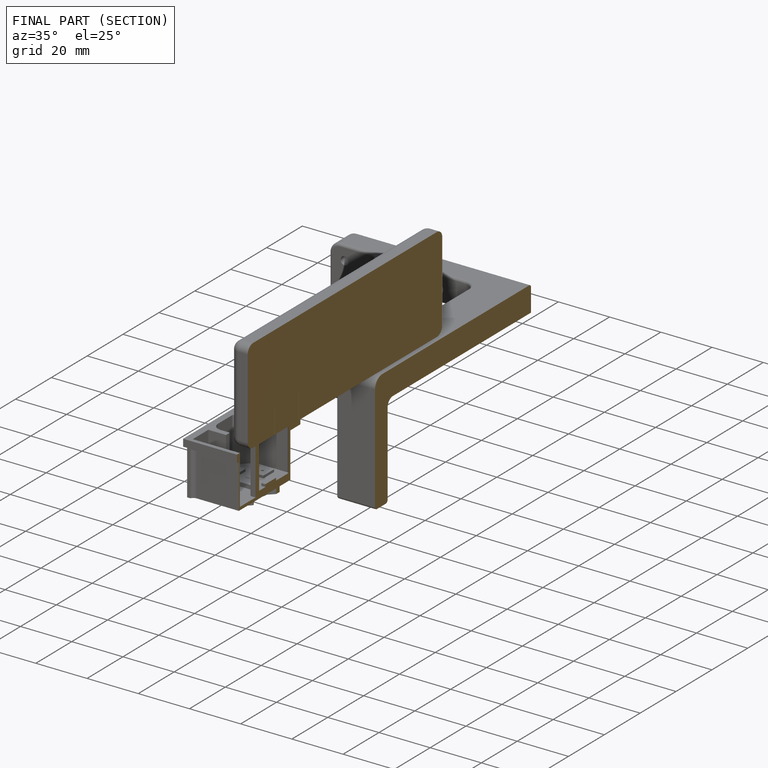
[diagram: finished part — half-section view (interior)]
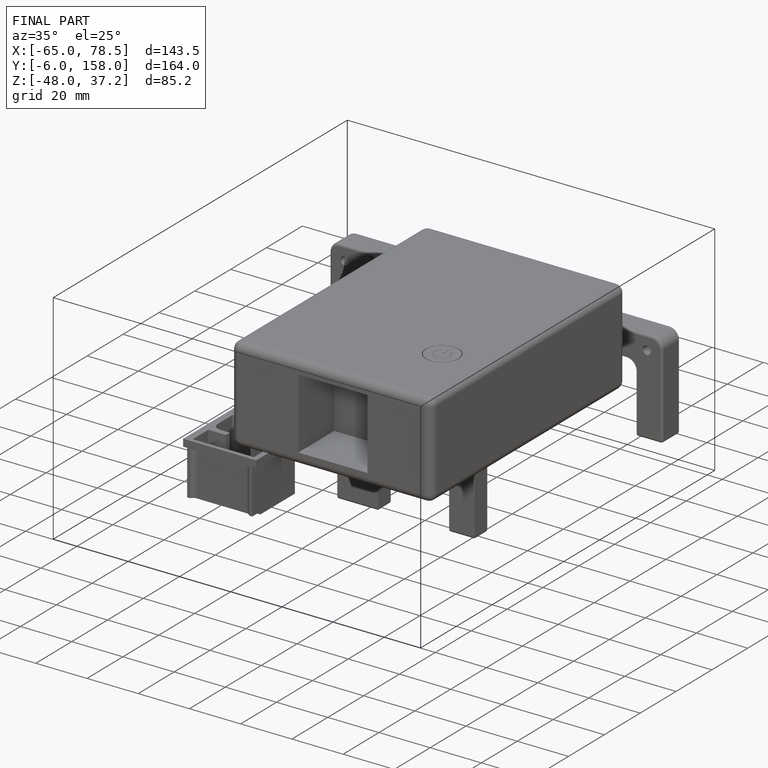
[diagram: finished part — iso view with bounding-box wireframe]
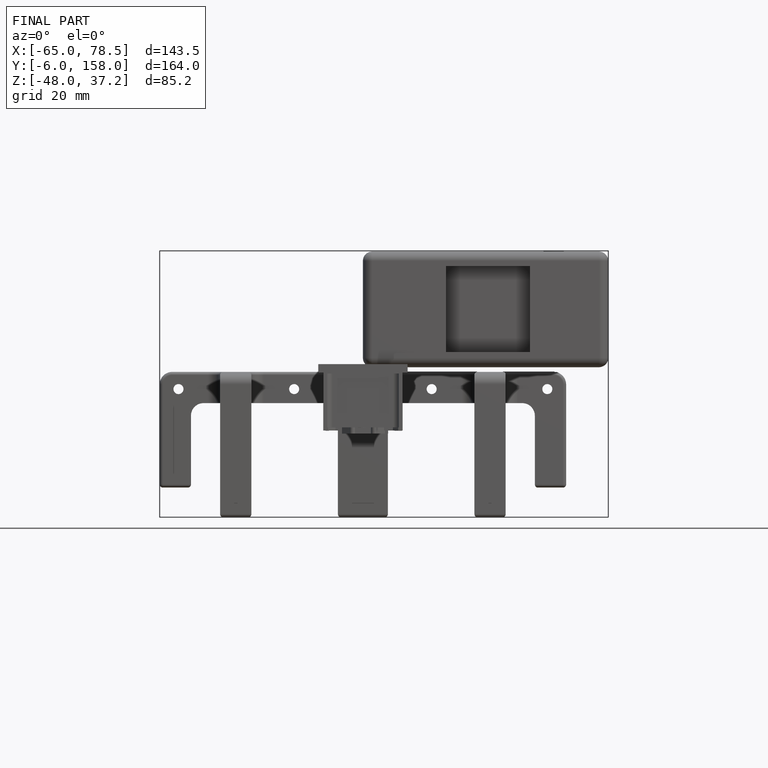
[diagram: finished part — front view with bounding-box wireframe]
